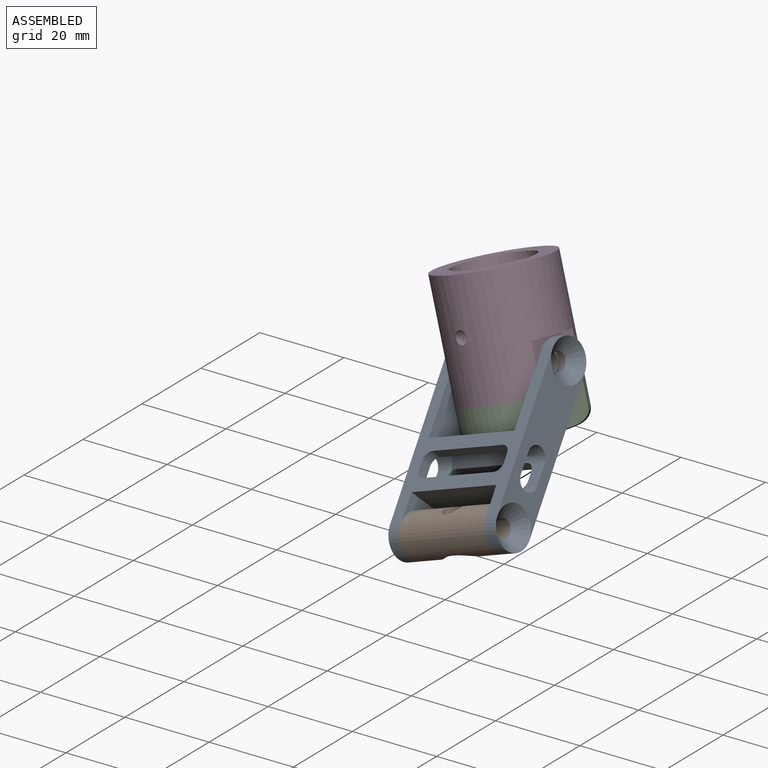
[diagram: assembled view]
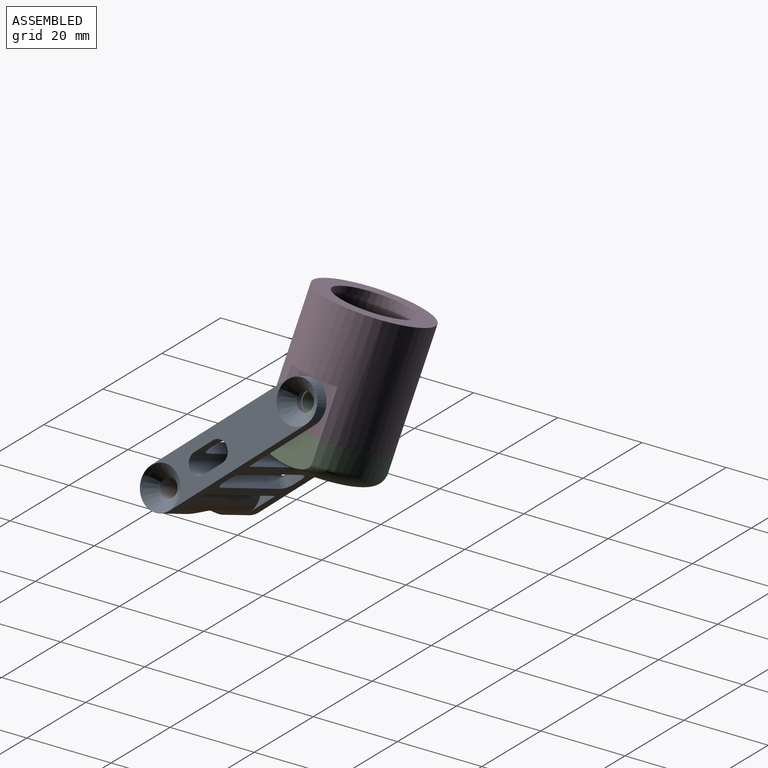
[diagram: assembled view, second angle]
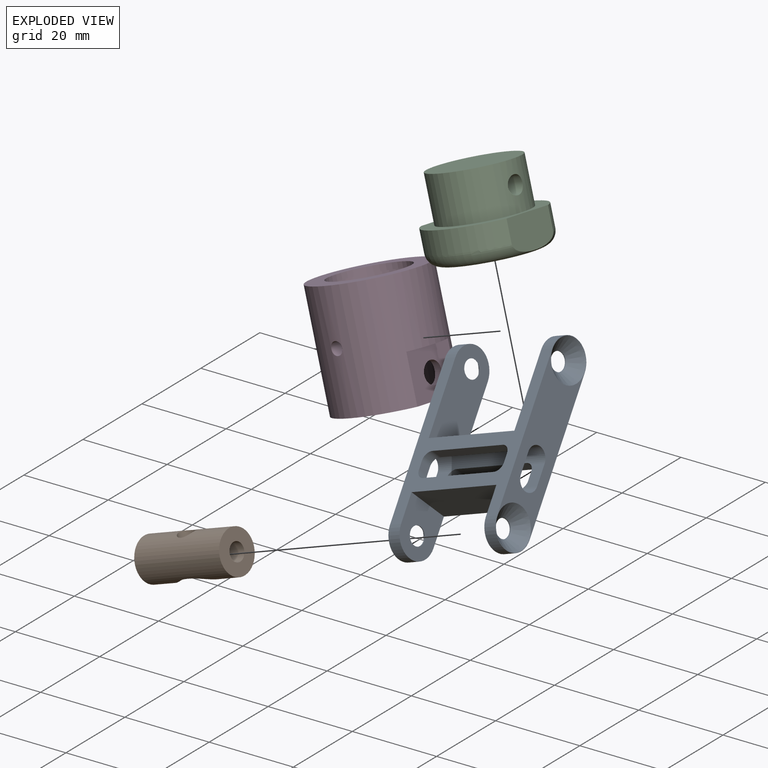
[diagram: exploded view]
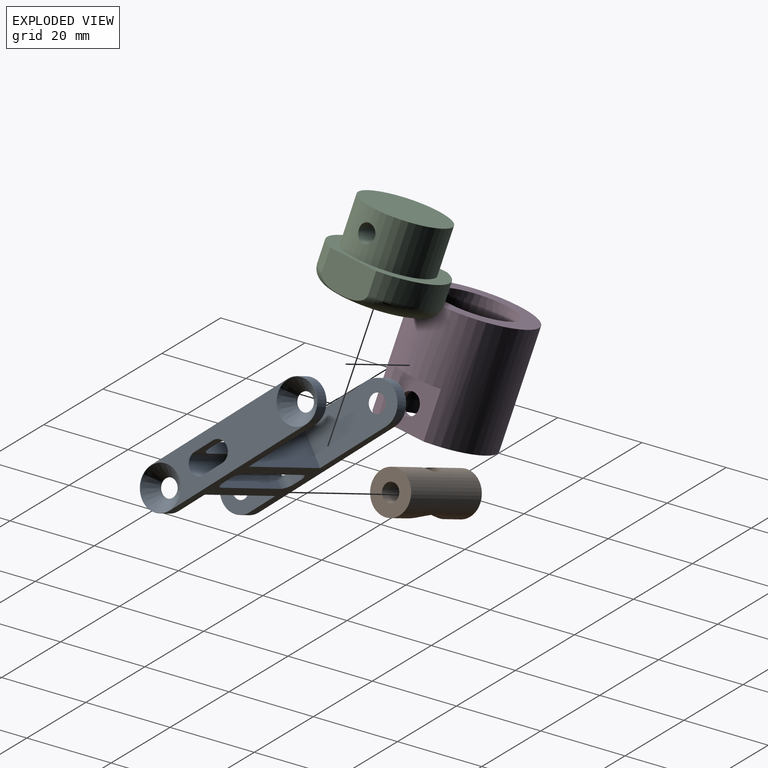
[diagram: exploded view, second angle]
ASSEMBLY  parts=4 mates=3
PART A: 44 faces, bbox 29x10x47 mm
  f0: cylinder r=2mm len=2.55mm, axis (0,-1,0), area 8mm2, adj f1,f7,f25,f39,f43
  f1: plane 18.91x2.55mm, normal (0,0,-1), area 48.2mm2, adj f0,f2,f25,f39
  f2: cylinder r=2mm len=2.55mm, axis (0,-1,0), area 8mm2, adj f1,f3,f25,f39,f42
  f3: plane 2.51x2mm, normal (-1,0,0), area 5mm2, adj f2,f12,f25,f42
  f4: cylinder r=2mm len=2.55mm, axis (0,-1,0), area 7.9mm2, adj f11,f13,f24,f38,f40
  f5: plane 18.95x2.55mm, normal (0,0,1), area 48.3mm2, adj f12,f14,f25,f38
  f6: cylinder r=2mm len=2.55mm, axis (0,-1,0), area 7.9mm2, adj f13,f23,f24,f38,f41
  f7: plane 2.51x2mm, normal (1,0,0), area 5mm2, adj f0,f14,f25,f43
  f8: cylinder r=2mm len=2.55mm, axis (0,-1,0), area 7.9mm2, adj f9,f23,f24,f39,f41
  f9: plane 18.91x2.55mm, normal (0,0,-1), area 48.2mm2, adj f8,f10,f24,f39
  f10: cylinder r=2mm len=2.55mm, axis (0,-1,0), area 7.9mm2, adj f9,f11,f24,f39,f40
  f11: plane 2.5x2mm, normal (-1,0,0), area 5mm2, adj f4,f10,f24,f40
  f12: cylinder r=2mm len=2.55mm, axis (0,-1,0), area 7.9mm2, adj f3,f5,f25,f38,f42
  f13: plane 18.95x2.55mm, normal (0,0,1), area 48.3mm2, adj f4,f6,f24,f38
  f14: cylinder r=2mm len=2.55mm, axis (0,-1,0), area 7.9mm2, adj f5,f7,f25,f38,f43
  f15: plane 23x10mm, normal (1,0,0), area 205.4mm2, adj f22,f24,f25,f29,f33
  f16: plane 47x10mm, normal (-1,0,0), area 253.1mm2, adj f24,f25,f28,f29,f36,f37,f38,f39
  f17: plane 12x10mm, normal (1,0,0), area 95.4mm2, adj f18,f24,f25,f28,f32
  f18: plane 22.91x10mm, normal (0,0,-1), area 229.1mm2, adj f17,f19,f24,f25
  f19: plane 12x10mm, normal (-1,0,0), area 95.4mm2, adj f18,f24,f25,f27,f31
  f20: plane 46.91x10mm, normal (1,0,0), area 252.1mm2, adj f24,f25,f26,f27,f34,f35,f38,f39
  f21: plane 22.91x10mm, normal (-1,0,0), area 204.5mm2, adj f22,f24,f25,f26,f30
  f22: plane 23.14x10mm, normal (0,0,1), area 231.4mm2, adj f15,f21,f24,f25
  f23: plane 2.5x2mm, normal (1,0,0), area 5mm2, adj f6,f8,f24,f41
  f24: plane 37x28.95mm, normal (0,1,0), area 360mm2, adj f4,f6,f8,f9,f10,f11,f13,f15
  f25: plane 37x28.95mm, normal (0,-1,0), area 360mm2, adj f0,f1,f2,f3,f5,f7,f12,f14
  f26: cylinder r=5mm len=10mm, axis (1,0,0), area 44.3mm2, adj f20,f21,f24,f25
  f27: cylinder r=5mm len=10mm, axis (-1,0,0), area 47.1mm2, adj f19,f20,f24,f25
  f28: cylinder r=5mm len=10mm, axis (-1,0,0), area 47.9mm2, adj f16,f17,f24,f25
  f29: cylinder r=5mm len=10mm, axis (1,0,0), area 47.1mm2, adj f15,f16,f24,f25
  f30: cylinder r=2.1mm len=4.2mm, axis (-1,0,0), area 0.2mm2, adj f21,f34
  f31: cylinder r=2.1mm len=4.2mm, axis (-1,0,0), area 2.6mm2, adj f19,f35
  f32: cylinder r=2.1mm len=4.2mm, axis (-1,0,0), area 3.3mm2, adj f17,f37
  f33: cylinder r=2.1mm len=4.2mm, axis (-1,0,0), area 2.6mm2, adj f15,f36
  f34: cone r=2.1mm half-angle=45deg, axis (1,0,0), area 87.1mm2, adj f20,f30
  f35: cone r=2.1mm half-angle=45deg, axis (1,0,0), area 87.1mm2, adj f20,f31
  f36: cone r=2.1mm half-angle=45deg, axis (-1,0,0), area 87.1mm2, adj f16,f33
  f37: cone r=2.1mm half-angle=45deg, axis (-1,0,0), area 87.1mm2, adj f16,f32
  f38: cylinder r=2.5mm len=28.95mm, axis (-1,0,0), area 206.5mm2, adj f4,f5,f6,f12,f13,f14,f16,f20
  f39: cylinder r=2.5mm len=28.95mm, axis (-1,0,0), area 208.1mm2, adj f0,f1,f2,f8,f9,f10,f16,f20
  f40: plane 5x3.68mm, normal (0,-1,0), area 15.6mm2, adj f4,f10,f11,f20,f38,f39
  f41: plane 5x3.68mm, normal (0,-1,0), area 15.6mm2, adj f6,f8,f16,f23,f38,f39
  f42: plane 4.77x3.67mm, normal (0,1,0), area 14.8mm2, adj f2,f3,f12,f20,f38,f39
  f43: plane 4.77x3.67mm, normal (0,1,0), area 14.8mm2, adj f0,f7,f14,f16,f38,f39
PART B: 8 faces, bbox 22.9x10x10 mm
  f0: cylinder r=5mm len=22.91mm, axis (-1,0,0), area 627.9mm2, adj f3,f4,f5,f7
  f1: cylinder r=2.1mm len=11.45mm, axis (-1,0,0), area 133.5mm2, adj f5,f6,f7
  f2: cylinder r=2.1mm len=11.45mm, axis (-1,0,0), area 133.5mm2, adj f4,f6,f7
  f3: cylinder r=12.7mm len=12.18mm, axis (0,0,1), area 59.8mm2, adj f0,f6
  f4: plane 10x10mm, normal (-1,0,0), area 64.7mm2, adj f0,f2
  f5: plane 10x10mm, normal (1,0,0), area 64.7mm2, adj f0,f1
  f6: cylinder r=2.1mm len=4.2mm, axis (0,1,0), area 29mm2, adj f1,f2,f3
  f7: cylinder r=2.1mm len=5mm, axis (0,1,0), area 45.3mm2, adj f0,f1,f2
PART C: 10 faces, bbox 28.1x18.6x28.1 mm
  f0: cylinder r=10mm len=20mm, axis (0,-1,0), area 638.1mm2, adj f1,f7,f8
  f1: plane 20x20mm, normal (0,1,0), area 314.2mm2, adj f0
  f2: plane 12.13x7.6mm, normal (-1,0,0), area 86.2mm2, adj f3,f5,f7,f9
  f3: cylinder r=13mm len=23mm, axis (0,1,0), area 141.1mm2, adj f2,f4,f7,f9
  f4: plane 12.13x7.6mm, normal (1,0,0), area 86.2mm2, adj f3,f5,f7,f9
  f5: cylinder r=13mm len=23mm, axis (0,1,0), area 141.1mm2, adj f2,f4,f7,f9
  f6: plane 20x20mm, normal (0,-1,0), area 314.2mm2, adj f9
  f7: plane 26x23mm, normal (0,1,0), area 192.2mm2, adj f0,f2,f3,f4,f5
  f8: cylinder r=2.1mm len=20mm, axis (-1,0,0), area 261mm2, adj f0
  f9: torus R=10mm, axis (0,-1,0), area 292.2mm2, adj f2,f3,f4,f5,f6
PART D: 13 faces, bbox 26x26.4x26 mm
  f0: cylinder r=13mm len=26.4mm, axis (0,1,0), area 1871.8mm2, adj f1,f2,f4,f7,f8,f9,f12
  f1: plane 12.12x11mm, normal (-1,0,0), area 113.7mm2, adj f0,f4,f8,f10
  f2: plane 12.12x11mm, normal (1,0,0), area 113.7mm2, adj f0,f4,f9,f11
  f3: cylinder r=10mm len=25mm, axis (0,1,0), area 1524.2mm2, adj f4,f5,f10,f11,f12
  f4: plane 26x23mm, normal (0,-1,0), area 192.2mm2, adj f0,f1,f2,f3
  f5: plane 20x20mm, normal (0,-1,0), area 65.3mm2, adj f3,f6
  f6: cylinder r=8.9mm len=17.8mm, axis (0,-1,0), area 78.3mm2, adj f5,f7
  f7: plane 26x26mm, normal (0,1,0), area 282.1mm2, adj f0,f6
  f8: plane 12.12x1.5mm, normal (0,-1,0), area 12.3mm2, adj f0,f1
  f9: plane 12.12x1.5mm, normal (0,-1,0), area 12.3mm2, adj f0,f2
  f10: cylinder r=2.5mm len=5mm, axis (-1,0,0), area 26.1mm2, adj f1,f3
  f11: cylinder r=2.5mm len=5mm, axis (-1,0,0), area 26mm2, adj f2,f3
  f12: cylinder r=1.5mm len=3.14mm, axis (0,0,-1), area 28.4mm2, adj f0,f3
PLACE A rot(axis=(-0.15,0.4,0.9),167.5deg) t=(-89.55,24.71,-64.02)mm
PLACE B rot(axis=(-0.97,-0.14,-0.21),90.2deg) t=(-13.67,58.68,-107.09)mm
PLACE C rot(axis=(0.96,-0.24,0.13),84.9deg) t=(-38.54,69.47,-37.61)mm
PLACE D rot(axis=(-0.09,0.75,0.66),161.7deg) t=(-92.31,42.84,-53.01)mm
MATE revolute A.f31 <-> B.f0  axis (0.93,-0.08,0.35) through (-63.13,26.51,-90.94)mm
MATE fastened C.f0 <-> D.f0  axis (-0.34,0.14,0.93) through (-57.02,52.64,-68.59)mm
MATE revolute D.f10 <-> A.f34  axis (0.93,-0.08,0.35) through (-48.12,52.58,-59.47)mm
